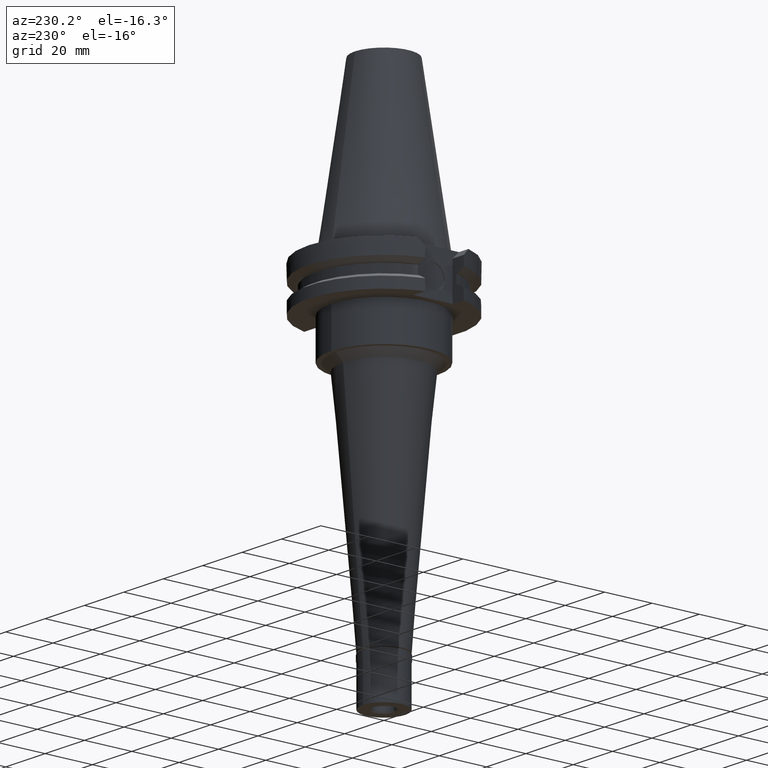
[diagram: clean part render]
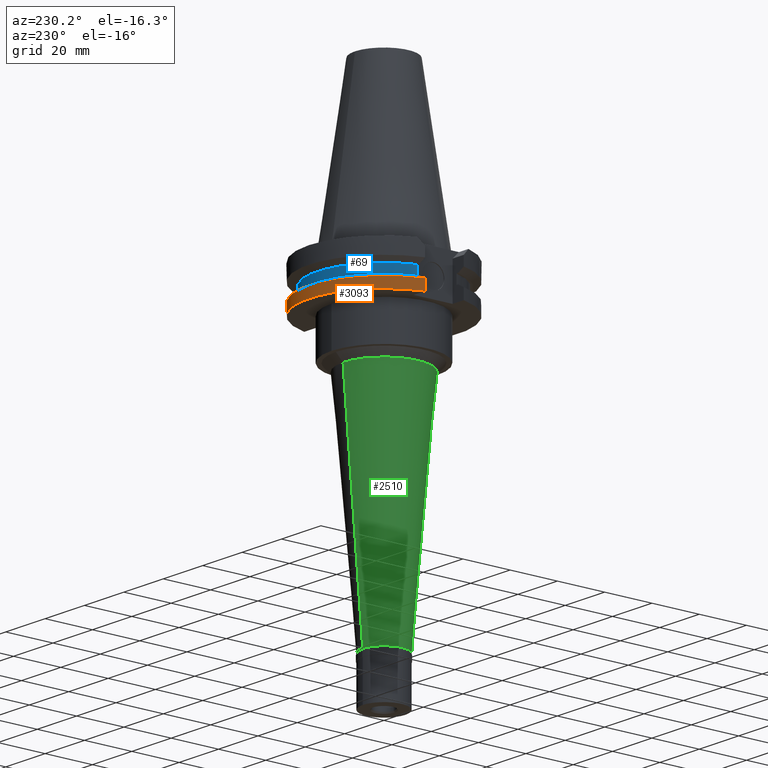
[diagram: same view with three faces highlighted in distinct colors, each labeled with its STEP entity id]
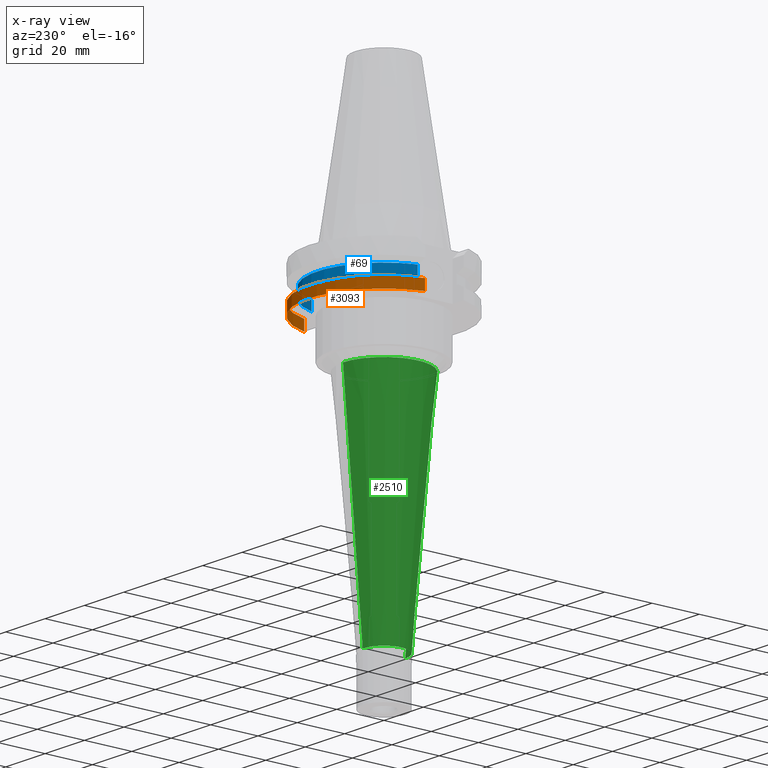
[diagram: x-ray of the same camera — body ghosted, the three highlighted faces saturated]
A machine part, auxiliary view with three faces highlighted in distinct colors.
The next image is the same camera in x-ray (body ghosted, the three faces saturated) — at least one of them is partly hidden behind the body in this view.
Their STEP definitions:

[orange] entity #3093 — the highlighted cylindrical surface (partial cylindrical patch) has radius 31.75 mm, axis along (0, 0, -1).
#245 = VECTOR ( 'NONE', #1533, 999.9999999999998863 ) ;
#266 = ORIENTED_EDGE ( 'NONE', *, *, #2178, .F. ) ;
#531 = CARTESIAN_POINT ( 'NONE',  ( -30.67550162588999640, 8.190000000000997815, -14.65366676908000088 ) ) ;
#555 = CARTESIAN_POINT ( 'NONE',  ( 0.0000000000000000000, 2.192760710042999810E-14, -19.05000000000000071 ) ) ;
#609 = VERTEX_POINT ( 'NONE', #1421 ) ;
#646 = DIRECTION ( 'NONE',  ( 0.0000000000000000000, -1.000000000000000000, 0.0000000000000000000 ) ) ;
#666 = AXIS2_PLACEMENT_3D ( 'NONE', #555, #1586, #2540 ) ;
#667 = CARTESIAN_POINT ( 'NONE',  ( 0.0000000000000000000, 1.055026073064999954E-14, -14.65366676908000088 ) ) ;
#772 = EDGE_CURVE ( 'NONE', #2826, #1171, #2702, .T. ) ;
#1012 = CARTESIAN_POINT ( 'NONE',  ( -30.67550146397999811, 8.190000606419999940, -14.65367218817000072 ) ) ;
#1135 = EDGE_CURVE ( 'NONE', #1682, #1171, #2468, .T. ) ;
#1137 = AXIS2_PLACEMENT_3D ( 'NONE', #667, #1649, #2362 ) ;
#1140 = EDGE_LOOP ( 'NONE', ( #266, #1449, #1216, #1180 ) ) ;
#1171 = VERTEX_POINT ( 'NONE', #1775 ) ;
#1180 = ORIENTED_EDGE ( 'NONE', *, *, #1527, .T. ) ;
#1216 = ORIENTED_EDGE ( 'NONE', *, *, #772, .F. ) ;
#1360 = VECTOR ( 'NONE', #2606, 1000.000000000000000 ) ;
#1371 = CYLINDRICAL_SURFACE ( 'NONE', #2688, 31.75000000000000000 ) ;
#1421 = CARTESIAN_POINT ( 'NONE',  ( 30.67550165945999652, 8.189999874275001090, -14.65366564558000029 ) ) ;
#1449 = ORIENTED_EDGE ( 'NONE', *, *, #1135, .T. ) ;
#1527 = EDGE_CURVE ( 'NONE', #2826, #609, #2778, .T. ) ;
#1533 = DIRECTION ( 'NONE',  ( -3.682761982136927661E-08, -1.379377670565972089E-07, -0.9999999999999898970 ) ) ;
#1586 = DIRECTION ( 'NONE',  ( 0.0000000000000000000, 0.0000000000000000000, 1.000000000000000000 ) ) ;
#1619 = CARTESIAN_POINT ( 'NONE',  ( 30.67550162588999640, 8.189999999999999503, -19.05000000000000071 ) ) ;
#1649 = DIRECTION ( 'NONE',  ( 0.0000000000000000000, 0.0000000000000000000, -1.000000000000000000 ) ) ;
#1682 = VERTEX_POINT ( 'NONE', #2421 ) ;
#1775 = CARTESIAN_POINT ( 'NONE',  ( -30.67550162588999640, 8.189999999999999503, -19.05000000000000071 ) ) ;
#2112 = FACE_OUTER_BOUND ( 'NONE', #1140, .T. ) ;
#2178 = EDGE_CURVE ( 'NONE', #1682, #609, #2344, .T. ) ;
#2344 = LINE ( 'NONE', #1619, #1360 ) ;
#2349 = CARTESIAN_POINT ( 'NONE',  ( 0.0000000000000000000, 2.192760710042999810E-14, 79.05249999999999488 ) ) ;
#2362 = DIRECTION ( 'NONE',  ( -0.9661575315241073270, 0.2579527559055020958, 0.0000000000000000000 ) ) ;
#2421 = CARTESIAN_POINT ( 'NONE',  ( 30.67550162588999640, 8.189999999999999503, -19.05000000000000071 ) ) ;
#2468 = CIRCLE ( 'NONE', #666, 31.75000000000000000 ) ;
#2540 = DIRECTION ( 'NONE',  ( 0.0000000000000000000, 1.000000000000000000, 0.0000000000000000000 ) ) ;
#2606 = DIRECTION ( 'NONE',  ( 7.635411593720995112E-09, -2.859773734028998540E-08, 0.9999999999999995559 ) ) ;
#2637 = DIRECTION ( 'NONE',  ( 0.0000000000000000000, 0.0000000000000000000, -1.000000000000000000 ) ) ;
#2688 = AXIS2_PLACEMENT_3D ( 'NONE', #2349, #2637, #646 ) ;
#2702 = LINE ( 'NONE', #1012, #245 ) ;
#2778 = CIRCLE ( 'NONE', #1137, 31.74999999999998579 ) ;
#2826 = VERTEX_POINT ( 'NONE', #531 ) ;
#3093 = ADVANCED_FACE ( 'NONE', ( #2112 ), #1371, .T. ) ;

[blue] entity #69 — the highlighted cylindrical surface (partial cylindrical patch) has radius 28.18 mm, axis along (0, 0, -1).
#69 = ADVANCED_FACE ( 'NONE', ( #1351 ), #143, .T. ) ;
#117 = EDGE_LOOP ( 'NONE', ( #2321, #1103, #1023, #748 ) ) ;
#143 = CYLINDRICAL_SURFACE ( 'NONE', #542, 28.17999999999999972 ) ;
#400 = CARTESIAN_POINT ( 'NONE',  ( 0.0000000000000000000, 2.192760710042999810E-14, -13.04749999999999943 ) ) ;
#479 = CIRCLE ( 'NONE', #1249, 28.17999999999999972 ) ;
#518 = VECTOR ( 'NONE', #800, 1000.000000000000000 ) ;
#542 = AXIS2_PLACEMENT_3D ( 'NONE', #2331, #1626, #2378 ) ;
#740 = VECTOR ( 'NONE', #2413, 1000.000000000000000 ) ;
#748 = ORIENTED_EDGE ( 'NONE', *, *, #2991, .T. ) ;
#800 = DIRECTION ( 'NONE',  ( 0.0000000000000000000, 0.0000000000000000000, -1.000000000000000000 ) ) ;
#819 = LINE ( 'NONE', #1557, #518 ) ;
#918 = VERTEX_POINT ( 'NONE', #2012 ) ;
#942 = DIRECTION ( 'NONE',  ( 0.0000000000000000000, 0.0000000000000000000, 1.000000000000000000 ) ) ;
#1023 = ORIENTED_EDGE ( 'NONE', *, *, #1132, .F. ) ;
#1103 = ORIENTED_EDGE ( 'NONE', *, *, #2187, .T. ) ;
#1132 = EDGE_CURVE ( 'NONE', #1773, #2295, #819, .T. ) ;
#1249 = AXIS2_PLACEMENT_3D ( 'NONE', #400, #942, #1722 ) ;
#1318 = DIRECTION ( 'NONE',  ( 0.0000000000000000000, 0.0000000000000000000, -1.000000000000000000 ) ) ;
#1351 = FACE_OUTER_BOUND ( 'NONE', #117, .T. ) ;
#1557 = CARTESIAN_POINT ( 'NONE',  ( -26.96361066326000255, 8.189999999999999503, -9.207499999999999574 ) ) ;
#1570 = CARTESIAN_POINT ( 'NONE',  ( -26.96361066326000255, 8.189999999999999503, -9.207499999999999574 ) ) ;
#1626 = DIRECTION ( 'NONE',  ( 0.0000000000000000000, 0.0000000000000000000, -1.000000000000000000 ) ) ;
#1627 = LINE ( 'NONE', #3129, #740 ) ;
#1722 = DIRECTION ( 'NONE',  ( 0.0000000000000000000, 1.000000000000000000, 0.0000000000000000000 ) ) ;
#1773 = VERTEX_POINT ( 'NONE', #1570 ) ;
#1892 = CARTESIAN_POINT ( 'NONE',  ( 26.96361066326000255, 8.189999999999999503, -13.04749999999999943 ) ) ;
#1933 = VERTEX_POINT ( 'NONE', #1892 ) ;
#1946 = CARTESIAN_POINT ( 'NONE',  ( -26.96361066326000255, 8.189999999999999503, -13.04749999999999943 ) ) ;
#2012 = CARTESIAN_POINT ( 'NONE',  ( 26.96361066326000255, 8.189999999999999503, -9.207499999999999574 ) ) ;
#2187 = EDGE_CURVE ( 'NONE', #1933, #2295, #479, .T. ) ;
#2295 = VERTEX_POINT ( 'NONE', #1946 ) ;
#2321 = ORIENTED_EDGE ( 'NONE', *, *, #3151, .F. ) ;
#2331 = CARTESIAN_POINT ( 'NONE',  ( 0.0000000000000000000, 2.192760710042999810E-14, 79.05249999999999488 ) ) ;
#2378 = DIRECTION ( 'NONE',  ( 0.0000000000000000000, -1.000000000000000000, 0.0000000000000000000 ) ) ;
#2413 = DIRECTION ( 'NONE',  ( 0.0000000000000000000, 0.0000000000000000000, 1.000000000000000000 ) ) ;
#2487 = AXIS2_PLACEMENT_3D ( 'NONE', #2592, #1318, #3016 ) ;
#2592 = CARTESIAN_POINT ( 'NONE',  ( 0.0000000000000000000, 2.192760710042999810E-14, -9.207499999999999574 ) ) ;
#2991 = EDGE_CURVE ( 'NONE', #1773, #918, #3162, .T. ) ;
#3016 = DIRECTION ( 'NONE',  ( -0.9568350128907829877, 0.2906316536550950236, 0.0000000000000000000 ) ) ;
#3129 = CARTESIAN_POINT ( 'NONE',  ( 26.96361066326000255, 8.189999999999999503, -13.04749999999999943 ) ) ;
#3151 = EDGE_CURVE ( 'NONE', #1933, #918, #1627, .T. ) ;
#3162 = CIRCLE ( 'NONE', #2487, 28.17999999999999616 ) ;

[green] entity #2510 — the highlighted conical surface has half-angle 5 deg.
#121 = AXIS2_PLACEMENT_3D ( 'NONE', #1505, #2486, #1567 ) ;
#142 = CARTESIAN_POINT ( 'NONE',  ( 0.0000000000000000000, 9.000000000000000000, -133.3000000000000114 ) ) ;
#156 = VERTEX_POINT ( 'NONE', #698 ) ;
#255 = EDGE_CURVE ( 'NONE', #1641, #1588, #476, .T. ) ;
#386 = CARTESIAN_POINT ( 'NONE',  ( 0.0000000000000000000, 0.0000000000000000000, -133.3000000000000114 ) ) ;
#402 = ORIENTED_EDGE ( 'NONE', *, *, #255, .T. ) ;
#427 = DIRECTION ( 'NONE',  ( 0.0000000000000000000, 1.000000000000000000, 0.0000000000000000000 ) ) ;
#476 = LINE ( 'NONE', #1290, #2696 ) ;
#481 = AXIS2_PLACEMENT_3D ( 'NONE', #779, #2755, #2740 ) ;
#698 = CARTESIAN_POINT ( 'NONE',  ( 0.0000000000000000000, -9.000000000000000000, -133.3000000000000114 ) ) ;
#711 = CARTESIAN_POINT ( 'NONE',  ( 0.0000000000000000000, 17.33766963401999917, -38.00000000000000000 ) ) ;
#779 = CARTESIAN_POINT ( 'NONE',  ( 0.0000000000000000000, 0.0000000000000000000, -38.00000000000000000 ) ) ;
#816 = AXIS2_PLACEMENT_3D ( 'NONE', #386, #3094, #427 ) ;
#968 = CIRCLE ( 'NONE', #816, 9.000000000000000000 ) ;
#992 = DIRECTION ( 'NONE',  ( 0.0000000000000000000, -0.08715574274766389740, -0.9961946980917451011 ) ) ;
#1038 = DIRECTION ( 'NONE',  ( 0.0000000000000000000, 0.08715574274766389740, -0.9961946980917451011 ) ) ;
#1198 = CONICAL_SURFACE ( 'NONE', #121, 13.16883481700999958, 0.08726646259969973729 ) ;
#1290 = CARTESIAN_POINT ( 'NONE',  ( 0.0000000000000000000, 17.33766963401999917, -38.00000000000000000 ) ) ;
#1375 = EDGE_CURVE ( 'NONE', #2356, #156, #2250, .T. ) ;
#1422 = CARTESIAN_POINT ( 'NONE',  ( 0.0000000000000000000, -17.33766963401999917, -38.00000000000000000 ) ) ;
#1434 = EDGE_CURVE ( 'NONE', #1588, #156, #968, .T. ) ;
#1505 = CARTESIAN_POINT ( 'NONE',  ( 0.0000000000000000000, 0.0000000000000000000, -85.65000000000000568 ) ) ;
#1567 = DIRECTION ( 'NONE',  ( 0.0000000000000000000, 1.000000000000000000, 0.0000000000000000000 ) ) ;
#1588 = VERTEX_POINT ( 'NONE', #142 ) ;
#1641 = VERTEX_POINT ( 'NONE', #711 ) ;
#1793 = ORIENTED_EDGE ( 'NONE', *, *, #1434, .T. ) ;
#1903 = EDGE_CURVE ( 'NONE', #2356, #1641, #2437, .T. ) ;
#2250 = LINE ( 'NONE', #3063, #2656 ) ;
#2356 = VERTEX_POINT ( 'NONE', #1422 ) ;
#2407 = EDGE_LOOP ( 'NONE', ( #1793, #3183, #2660, #402 ) ) ;
#2437 = CIRCLE ( 'NONE', #481, 17.33766963401999917 ) ;
#2486 = DIRECTION ( 'NONE',  ( 0.0000000000000000000, 0.0000000000000000000, 1.000000000000000000 ) ) ;
#2510 = ADVANCED_FACE ( 'NONE', ( #2988 ), #1198, .T. ) ;
#2656 = VECTOR ( 'NONE', #1038, 1000.000000000000114 ) ;
#2660 = ORIENTED_EDGE ( 'NONE', *, *, #1903, .T. ) ;
#2696 = VECTOR ( 'NONE', #992, 1000.000000000000114 ) ;
#2740 = DIRECTION ( 'NONE',  ( 0.0000000000000000000, -1.000000000000000000, 0.0000000000000000000 ) ) ;
#2755 = DIRECTION ( 'NONE',  ( 0.0000000000000000000, 0.0000000000000000000, -1.000000000000000000 ) ) ;
#2988 = FACE_OUTER_BOUND ( 'NONE', #2407, .T. ) ;
#3063 = CARTESIAN_POINT ( 'NONE',  ( 0.0000000000000000000, -17.33766963401999917, -38.00000000000000000 ) ) ;
#3094 = DIRECTION ( 'NONE',  ( 0.0000000000000000000, 0.0000000000000000000, 1.000000000000000000 ) ) ;
#3183 = ORIENTED_EDGE ( 'NONE', *, *, #1375, .F. ) ;